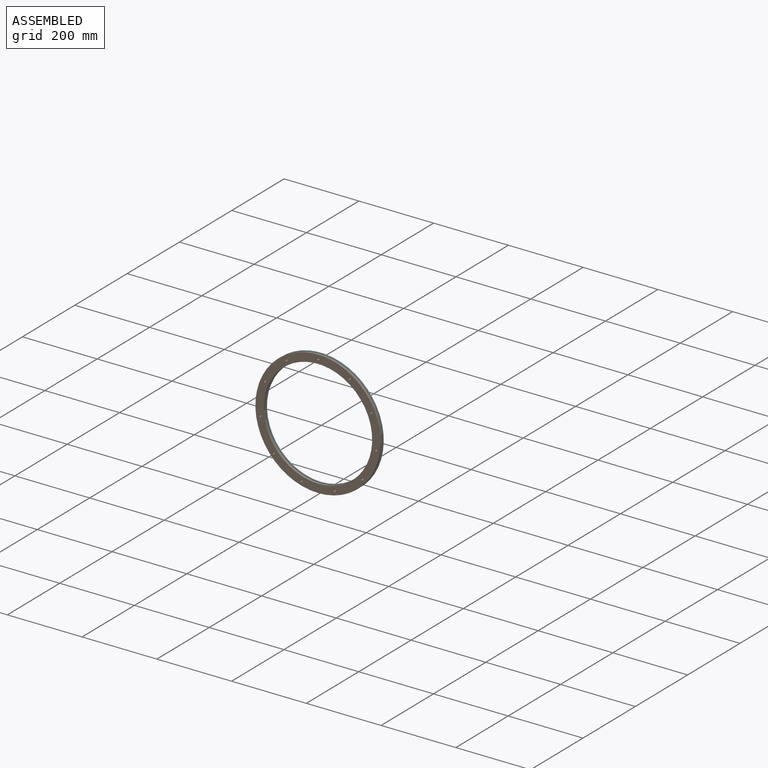
[diagram: assembled view]
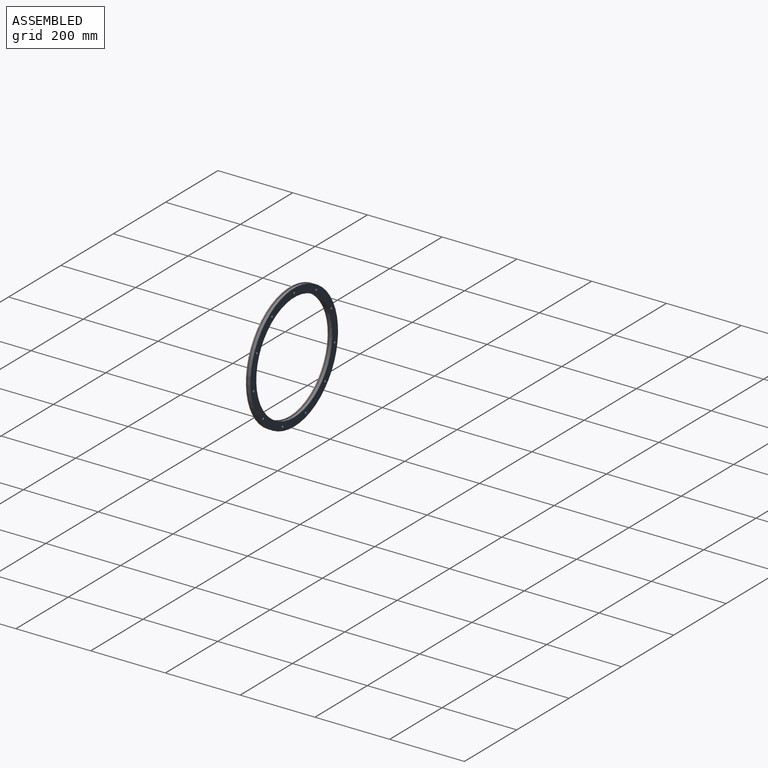
[diagram: assembled view, second angle]
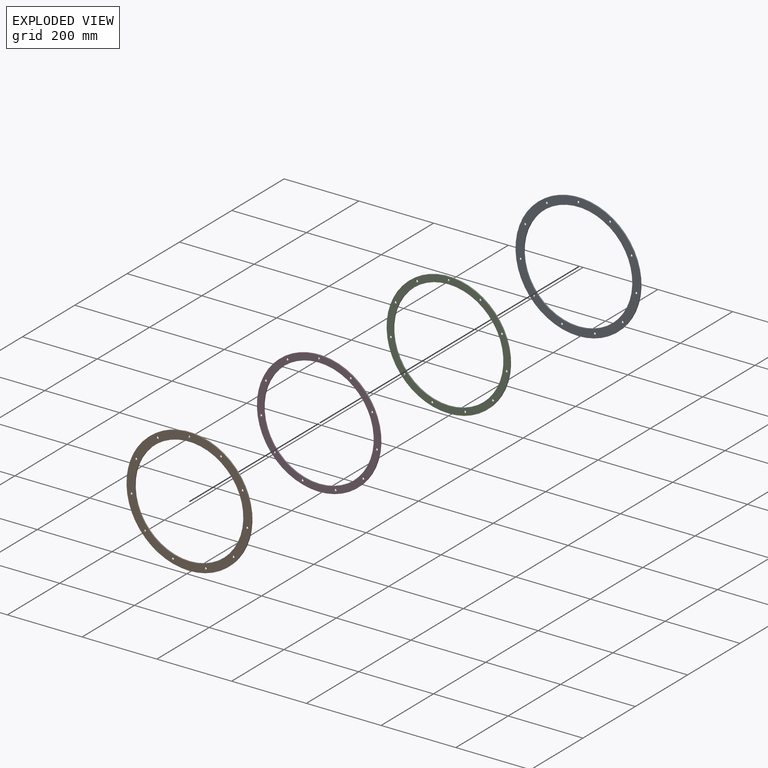
[diagram: exploded view]
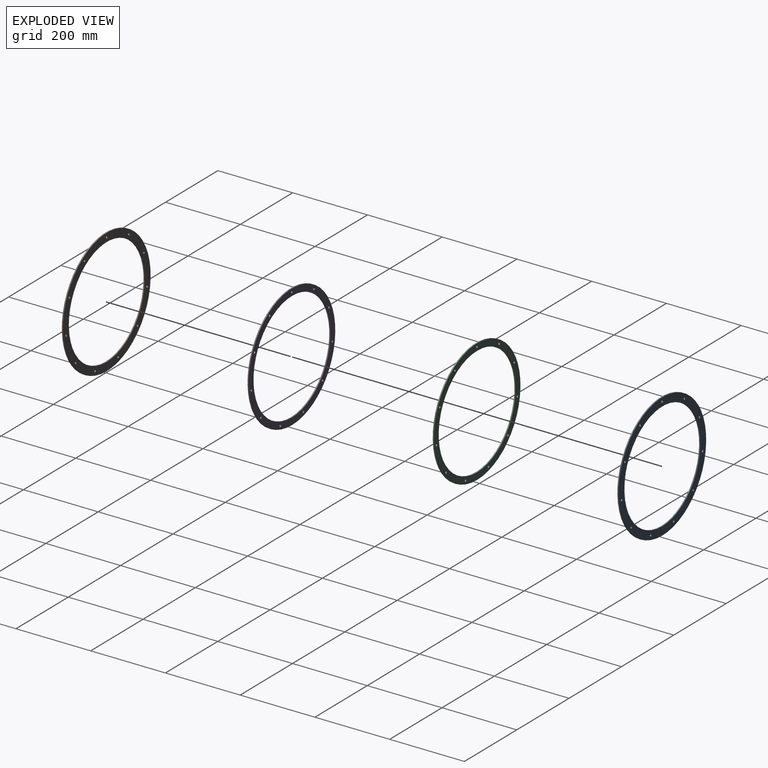
[diagram: exploded view, second angle]
ASSEMBLY  parts=4 mates=3
PART A: 15 faces, bbox 335x3x335 mm
  f0: cylinder r=145mm len=290mm, axis (0,1,0), area 2733.2mm2, adj f2,f3
  f1: cylinder r=167.5mm len=335mm, axis (0,1,0), area 3157.3mm2, adj f2,f3
  f2: plane 335x335mm, normal (0,-1,0), area 21778.3mm2, adj f0,f1,f4,f5,f6,f7,f8,f9
  f3: plane 335x335mm, normal (0,1,0), area 21778.3mm2, adj f0,f1,f4,f5,f6,f7,f8,f9
  f4: cylinder r=3mm len=6mm, axis (0,-1,0), area 56.5mm2, adj f2,f3
  f5: cylinder r=3mm len=6mm, axis (0,-1,0), area 56.5mm2, adj f2,f3
  f6: cylinder r=3mm len=6mm, axis (0,-1,0), area 56.5mm2, adj f2,f3
  f7: cylinder r=3mm len=6mm, axis (0,-1,0), area 56.5mm2, adj f2,f3
  f8: cylinder r=3mm len=6mm, axis (0,-1,0), area 56.5mm2, adj f2,f3
  f9: cylinder r=3mm len=6mm, axis (0,-1,0), area 56.5mm2, adj f2,f3
  f10: cylinder r=3mm len=6mm, axis (0,-1,0), area 56.5mm2, adj f2,f3
  f11: cylinder r=3mm len=6mm, axis (0,-1,0), area 56.5mm2, adj f2,f3
  f12: cylinder r=3mm len=6mm, axis (0,-1,0), area 56.5mm2, adj f2,f3
  f13: cylinder r=3mm len=6mm, axis (0,-1,0), area 56.5mm2, adj f2,f3
  f14: cylinder r=3mm len=6mm, axis (0,-1,0), area 56.5mm2, adj f2,f3
PART B: same geometry as A
PART C: 15 faces, bbox 331x3x331 mm
  f0: cylinder r=147mm len=294mm, axis (0,1,0), area 2770.9mm2, adj f2,f3
  f1: cylinder r=165.5mm len=331mm, axis (0,1,0), area 3119.6mm2, adj f2,f3
  f2: plane 331x331mm, normal (0,-1,0), area 17851.3mm2, adj f0,f1,f4,f5,f6,f7,f8,f9
  f3: plane 331x331mm, normal (0,1,0), area 17851.3mm2, adj f0,f1,f4,f5,f6,f7,f8,f9
  f4: cylinder r=3mm len=6mm, axis (0,-1,0), area 56.5mm2, adj f2,f3
  f5: cylinder r=3mm len=6mm, axis (0,-1,0), area 56.5mm2, adj f2,f3
  f6: cylinder r=3mm len=6mm, axis (0,-1,0), area 56.5mm2, adj f2,f3
  f7: cylinder r=3mm len=6mm, axis (0,-1,0), area 56.5mm2, adj f2,f3
  f8: cylinder r=3mm len=6mm, axis (0,-1,0), area 56.5mm2, adj f2,f3
  f9: cylinder r=3mm len=6mm, axis (0,-1,0), area 56.5mm2, adj f2,f3
  f10: cylinder r=3mm len=6mm, axis (0,-1,0), area 56.5mm2, adj f2,f3
  f11: cylinder r=3mm len=6mm, axis (0,-1,0), area 56.5mm2, adj f2,f3
  f12: cylinder r=3mm len=6mm, axis (0,-1,0), area 56.5mm2, adj f2,f3
  f13: cylinder r=3mm len=6mm, axis (0,-1,0), area 56.5mm2, adj f2,f3
  f14: cylinder r=3mm len=6mm, axis (0,-1,0), area 56.5mm2, adj f2,f3
PART D: same geometry as C
PLACE A rot(axis=(0.02,0.83,-0.56),0deg) t=(4.22,107.38,-10.61)mm
PLACE B rot(axis=(0.02,0.83,-0.56),0deg) t=(4.22,98.38,-10.61)mm
PLACE C rot(axis=(0.02,0.83,-0.56),0deg) t=(4.22,104.38,-10.61)mm
PLACE D rot(axis=(0.02,0.83,-0.56),0deg) t=(4.22,101.38,-10.61)mm
MATE fastened B.f1 <-> D.f1  axis (0,1,0) through (4.22,98.38,-10.61)mm
MATE fastened C.f1 <-> A.f1  axis (0,1,0) through (4.22,104.38,-10.61)mm
MATE fastened C.f1 <-> D.f1  axis (0,-1,0) through (4.22,101.38,-10.61)mm
